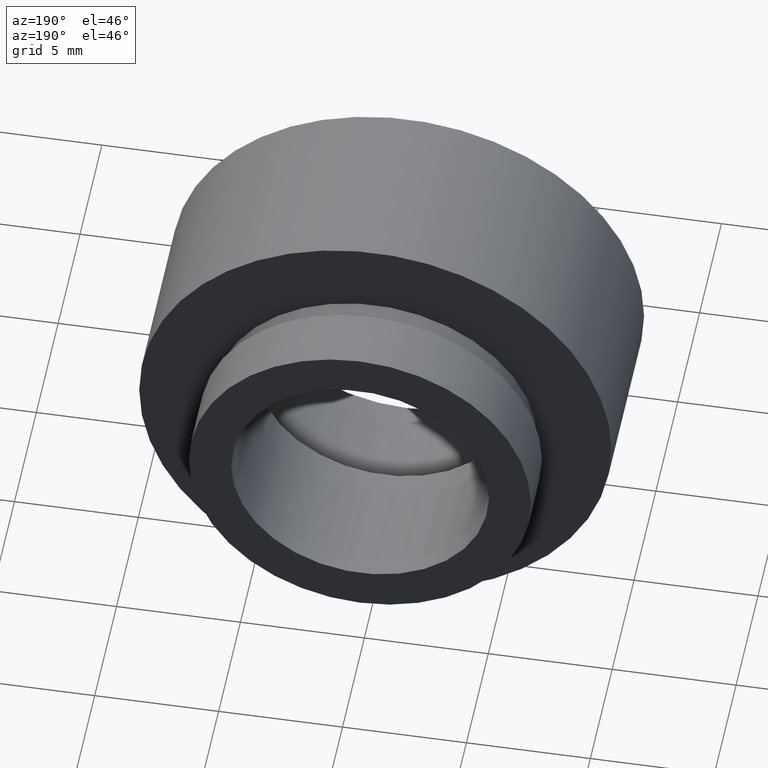
[diagram: clean part render]
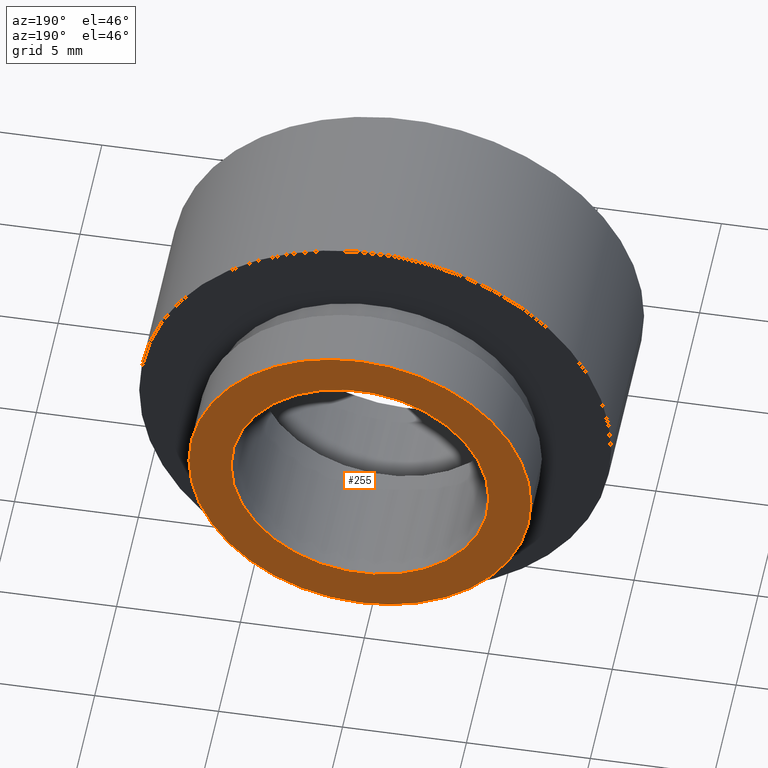
[diagram: same view with one face highlighted and labeled with its STEP entity id]
A machine part, auxiliary view. The second image highlights one B-rep face of the part: STEP entity #255.
In plain terms, the highlighted planar face has unit normal (0, -1, 0).
Its self-contained STEP definition (entity closure, byte-faithful):
#4 = VERTEX_POINT ( 'NONE', #410 ) ;
#6 = CIRCLE ( 'NONE', #387, 5.200000000000001100 ) ;
#29 = CARTESIAN_POINT ( 'NONE',  ( 7.208293393765501500E-016, 10.99999999999999600, 0.0000000000000000000 ) ) ;
#52 = PLANE ( 'NONE',  #328 ) ;
#67 = DIRECTION ( 'NONE',  ( -1.224646799147351000E-016, 1.000000000000000000, -0.0000000000000000000 ) ) ;
#68 = CARTESIAN_POINT ( 'NONE',  ( 7.208293393765498600E-016, 11.00000000000000000, 0.0000000000000000000 ) ) ;
#74 = DIRECTION ( 'NONE',  ( -1.000000000000000000, 0.0000000000000000000, 0.0000000000000000000 ) ) ;
#82 = CIRCLE ( 'NONE', #191, 6.900000000000001200 ) ;
#103 = DIRECTION ( 'NONE',  ( 1.000000000000000000, 1.224646799147351000E-016, 0.0000000000000000000 ) ) ;
#111 = DIRECTION ( 'NONE',  ( -1.000000000000000000, 0.0000000000000000000, 0.0000000000000000000 ) ) ;
#113 = DIRECTION ( 'NONE',  ( -1.224646799147351000E-016, 1.000000000000000000, -0.0000000000000000000 ) ) ;
#122 = DIRECTION ( 'NONE',  ( -1.000000000000000000, 0.0000000000000000000, 0.0000000000000000000 ) ) ;
#127 = EDGE_LOOP ( 'NONE', ( #574, #249 ) ) ;
#144 = EDGE_LOOP ( 'NONE', ( #416, #169 ) ) ;
#169 = ORIENTED_EDGE ( 'NONE', *, *, #573, .T. ) ;
#173 = CIRCLE ( 'NONE', #352, 6.900000000000001200 ) ;
#191 = AXIS2_PLACEMENT_3D ( 'NONE', #29, #519, #513 ) ;
#235 = CARTESIAN_POINT ( 'NONE',  ( 6.900000000000002100, 10.99999999999999600, 8.450062914116738600E-016 ) ) ;
#249 = ORIENTED_EDGE ( 'NONE', *, *, #420, .F. ) ;
#254 = FACE_OUTER_BOUND ( 'NONE', #144, .T. ) ;
#255 = ADVANCED_FACE ( 'NONE', ( #568, #254 ), #52, .F. ) ;
#266 = DIRECTION ( 'NONE',  ( -1.224646799147351000E-016, 1.000000000000000000, -0.0000000000000000000 ) ) ;
#268 = EDGE_CURVE ( 'NONE', #4, #592, #173, .T. ) ;
#328 = AXIS2_PLACEMENT_3D ( 'NONE', #485, #345, #103 ) ;
#345 = DIRECTION ( 'NONE',  ( 1.224646799147351000E-016, -1.000000000000000000, 0.0000000000000000000 ) ) ;
#352 = AXIS2_PLACEMENT_3D ( 'NONE', #397, #113, #111 ) ;
#366 = CARTESIAN_POINT ( 'NONE',  ( 7.208293393765498600E-016, 11.00000000000000000, 0.0000000000000000000 ) ) ;
#376 = CARTESIAN_POINT ( 'NONE',  ( -5.200000000000000200, 11.00000000000000000, 0.0000000000000000000 ) ) ;
#385 = EDGE_CURVE ( 'NONE', #594, #534, #623, .T. ) ;
#387 = AXIS2_PLACEMENT_3D ( 'NONE', #68, #266, #74 ) ;
#397 = CARTESIAN_POINT ( 'NONE',  ( 7.208293393765501500E-016, 10.99999999999999600, 0.0000000000000000000 ) ) ;
#410 = CARTESIAN_POINT ( 'NONE',  ( -6.900000000000000400, 10.99999999999999600, 0.0000000000000000000 ) ) ;
#416 = ORIENTED_EDGE ( 'NONE', *, *, #268, .T. ) ;
#420 = EDGE_CURVE ( 'NONE', #534, #594, #6, .T. ) ;
#458 = CARTESIAN_POINT ( 'NONE',  ( 5.200000000000001100, 11.00000000000000000, 6.368163355566236400E-016 ) ) ;
#485 = CARTESIAN_POINT ( 'NONE',  ( 5.200000000000001100, 11.00000000000000000, 0.0000000000000000000 ) ) ;
#513 = DIRECTION ( 'NONE',  ( -1.000000000000000000, 0.0000000000000000000, 0.0000000000000000000 ) ) ;
#519 = DIRECTION ( 'NONE',  ( -1.224646799147351000E-016, 1.000000000000000000, -0.0000000000000000000 ) ) ;
#534 = VERTEX_POINT ( 'NONE', #458 ) ;
#557 = AXIS2_PLACEMENT_3D ( 'NONE', #366, #67, #122 ) ;
#568 = FACE_BOUND ( 'NONE', #127, .T. ) ;
#573 = EDGE_CURVE ( 'NONE', #592, #4, #82, .T. ) ;
#574 = ORIENTED_EDGE ( 'NONE', *, *, #385, .F. ) ;
#592 = VERTEX_POINT ( 'NONE', #235 ) ;
#594 = VERTEX_POINT ( 'NONE', #376 ) ;
#623 = CIRCLE ( 'NONE', #557, 5.200000000000001100 ) ;